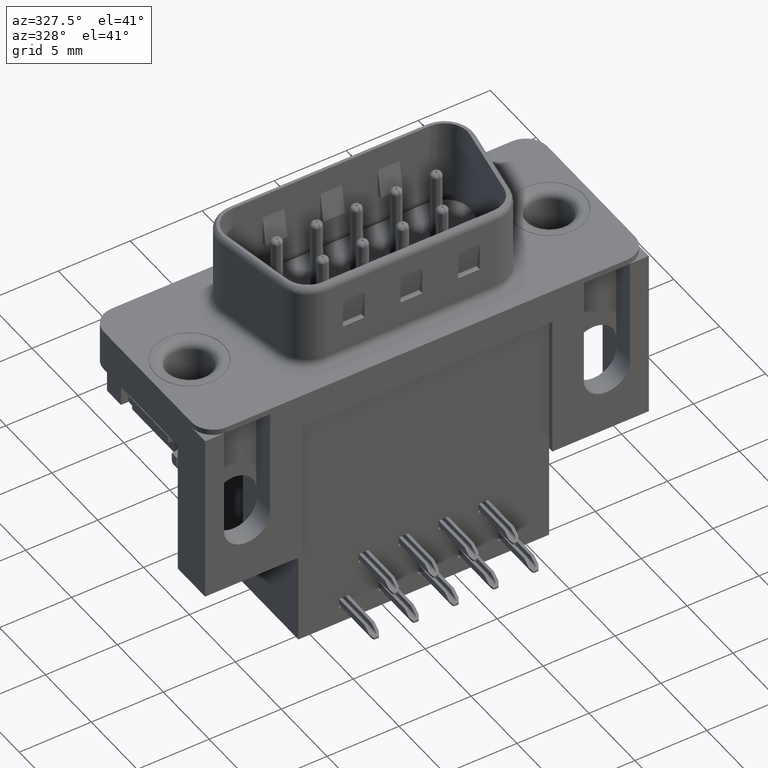
[diagram: clean part render]
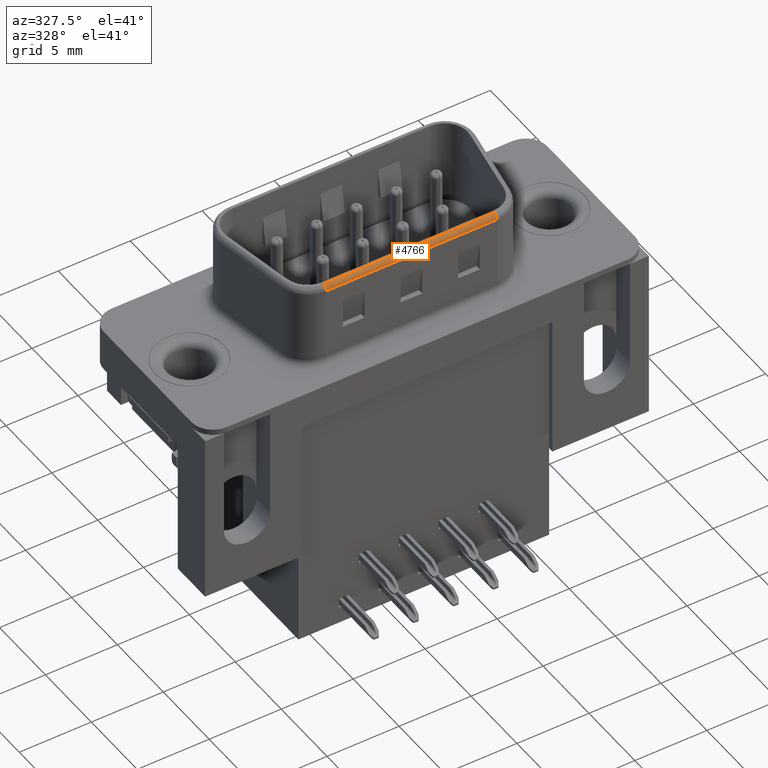
[diagram: same view with one face highlighted and labeled with its STEP entity id]
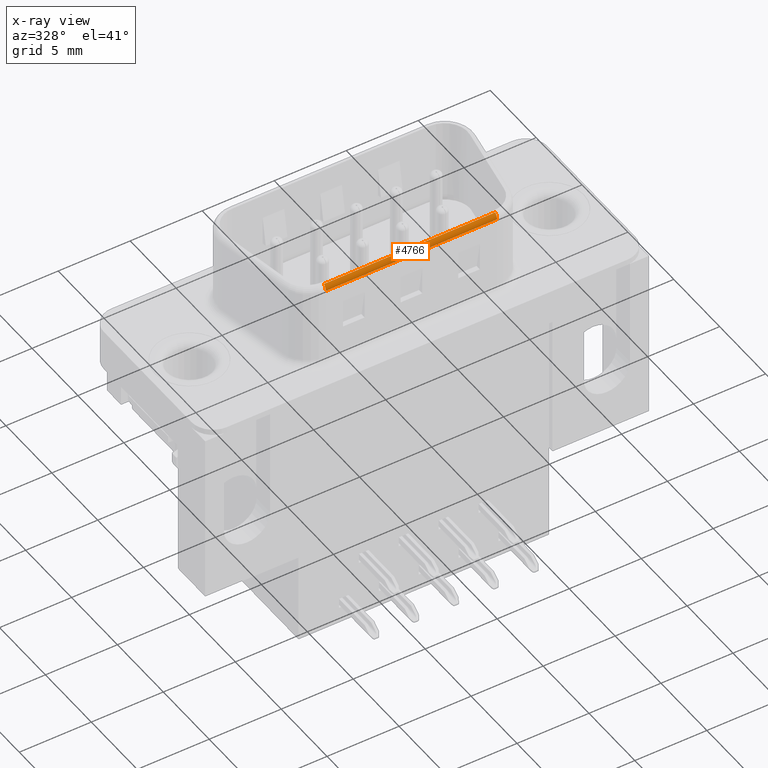
[diagram: x-ray of the same camera — body ghosted, the highlighted face saturated]
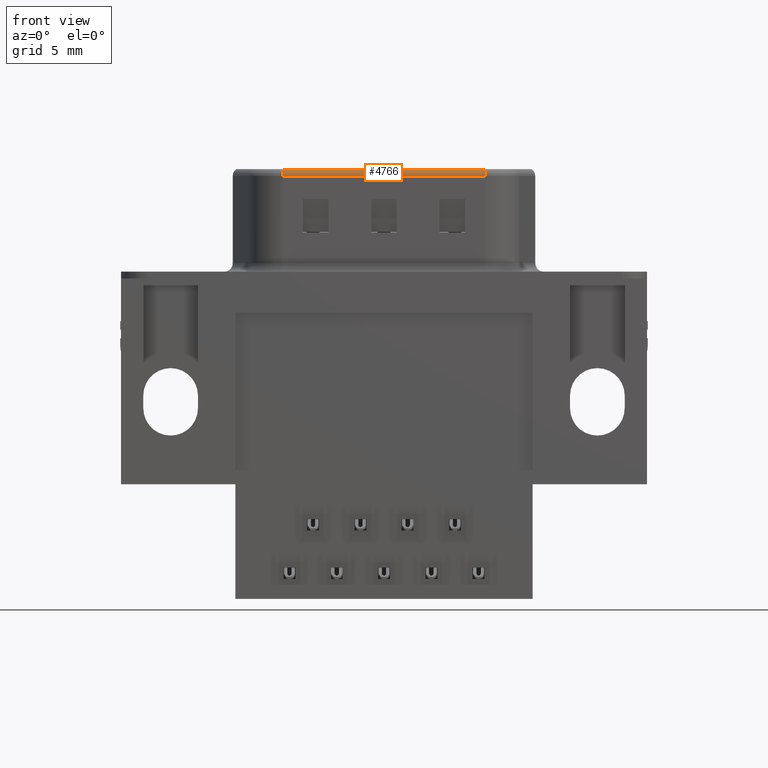
[diagram: same view with one face highlighted and labeled with its STEP entity id]
A machine part, auxiliary view. The second image highlights one B-rep face of the part: STEP entity #4766.
The next image is the same camera in x-ray: the body ghosted, the highlighted face saturated — about 0% of this face is hidden behind the body in this view.
A second angle (front view) of the same face is appended — the face is thin or edge-on in the first view.
In plain terms, the highlighted cylindrical surface (edge-blend (fillet) strip) has radius 0.5 mm, axis along (1, 0, 0).
Its self-contained STEP definition (entity closure, byte-faithful):
#168 = CIRCLE ( 'NONE', #9634, 0.5000000000000004400 ) ;
#232 = ORIENTED_EDGE ( 'NONE', *, *, #8762, .F. ) ;
#723 = EDGE_CURVE ( 'NONE', #6118, #3086, #4435, .T. ) ;
#1144 = CARTESIAN_POINT ( 'NONE',  ( 18.44515277954435800, -4.580000000000005400, 6.000000000000000000 ) ) ;
#1369 = EDGE_CURVE ( 'NONE', #13770, #6521, #5452, .T. ) ;
#2051 = CIRCLE ( 'NONE', #10038, 0.5000000000000004400 ) ;
#2127 = DIRECTION ( 'NONE',  ( 0.0000000000000000000, 0.0000000000000000000, -1.000000000000000000 ) ) ;
#2832 = CARTESIAN_POINT ( 'NONE',  ( 6.544847220455646500, -4.080000000000005400, 6.000000000000000000 ) ) ;
#2940 = CARTESIAN_POINT ( 'NONE',  ( 18.44515277954435800, -4.380000000000005200, 6.400000000000000400 ) ) ;
#3086 = VERTEX_POINT ( 'NONE', #13937 ) ;
#3417 = DIRECTION ( 'NONE',  ( 1.000000000000000000, 0.0000000000000000000, 0.0000000000000000000 ) ) ;
#3428 = ORIENTED_EDGE ( 'NONE', *, *, #723, .F. ) ;
#3459 = ORIENTED_EDGE ( 'NONE', *, *, #13133, .F. ) ;
#3949 = DIRECTION ( 'NONE',  ( 0.0000000000000000000, 0.0000000000000000000, 1.000000000000000000 ) ) ;
#3977 = DIRECTION ( 'NONE',  ( -1.000000000000000000, -0.0000000000000000000, -0.0000000000000000000 ) ) ;
#4435 = LINE ( 'NONE', #2940, #9467 ) ;
#4444 = CARTESIAN_POINT ( 'NONE',  ( 18.44515277954435800, -4.080000000000005400, 6.000000000000000000 ) ) ;
#4766 = ADVANCED_FACE ( 'NONE', ( #8632 ), #14016, .T. ) ;
#4981 = CARTESIAN_POINT ( 'NONE',  ( 6.544847220455646500, -4.380000000000005200, 6.400000000000000400 ) ) ;
#5111 = EDGE_LOOP ( 'NONE', ( #3428, #232, #10475, #3459 ) ) ;
#5452 = LINE ( 'NONE', #12785, #10809 ) ;
#5516 = DIRECTION ( 'NONE',  ( 0.0000000000000000000, 0.0000000000000000000, -1.000000000000000000 ) ) ;
#6118 = VERTEX_POINT ( 'NONE', #4981 ) ;
#6521 = VERTEX_POINT ( 'NONE', #10135 ) ;
#6976 = AXIS2_PLACEMENT_3D ( 'NONE', #13974, #7163, #2127 ) ;
#7163 = DIRECTION ( 'NONE',  ( 1.000000000000000000, 0.0000000000000000000, 0.0000000000000000000 ) ) ;
#8632 = FACE_OUTER_BOUND ( 'NONE', #5111, .T. ) ;
#8762 = EDGE_CURVE ( 'NONE', #6521, #6118, #168, .T. ) ;
#9467 = VECTOR ( 'NONE', #3417, 1000.000000000000000 ) ;
#9634 = AXIS2_PLACEMENT_3D ( 'NONE', #2832, #10348, #3949 ) ;
#10038 = AXIS2_PLACEMENT_3D ( 'NONE', #4444, #11937, #5516 ) ;
#10135 = CARTESIAN_POINT ( 'NONE',  ( 6.544847220455646500, -4.580000000000005400, 6.000000000000000000 ) ) ;
#10348 = DIRECTION ( 'NONE',  ( -1.000000000000000000, 0.0000000000000000000, 0.0000000000000000000 ) ) ;
#10475 = ORIENTED_EDGE ( 'NONE', *, *, #1369, .F. ) ;
#10809 = VECTOR ( 'NONE', #3977, 1000.000000000000000 ) ;
#11937 = DIRECTION ( 'NONE',  ( 1.000000000000000000, 0.0000000000000000000, -0.0000000000000000000 ) ) ;
#12785 = CARTESIAN_POINT ( 'NONE',  ( 18.44515277954435800, -4.580000000000005400, 6.000000000000000000 ) ) ;
#13133 = EDGE_CURVE ( 'NONE', #3086, #13770, #2051, .T. ) ;
#13770 = VERTEX_POINT ( 'NONE', #1144 ) ;
#13937 = CARTESIAN_POINT ( 'NONE',  ( 18.44515277954435800, -4.380000000000004300, 6.400000000000000400 ) ) ;
#13974 = CARTESIAN_POINT ( 'NONE',  ( 18.44515277954435800, -4.080000000000005400, 6.000000000000000000 ) ) ;
#14016 = CYLINDRICAL_SURFACE ( 'NONE', #6976, 0.5000000000000004400 ) ;